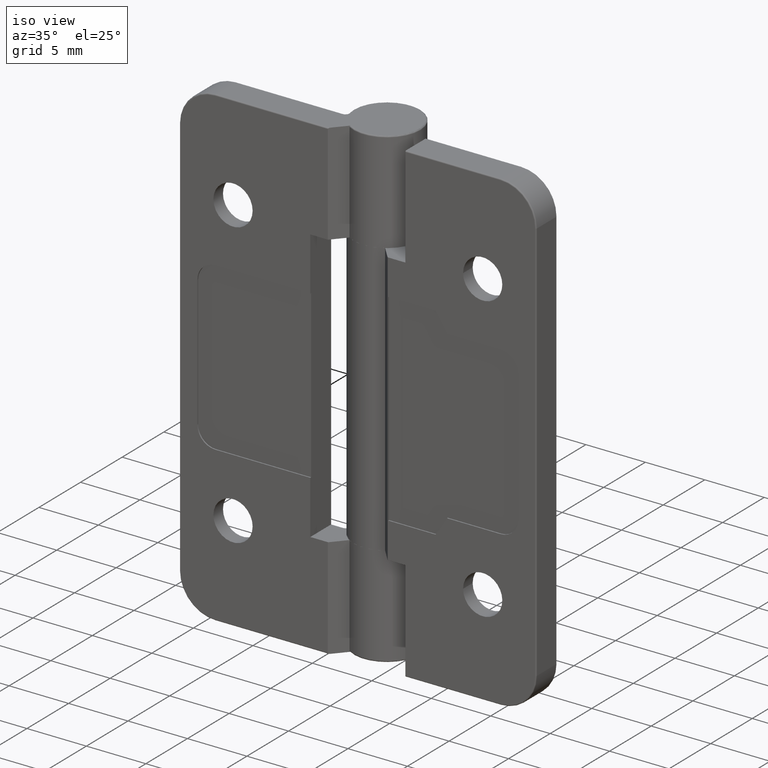
[diagram: clean part render]
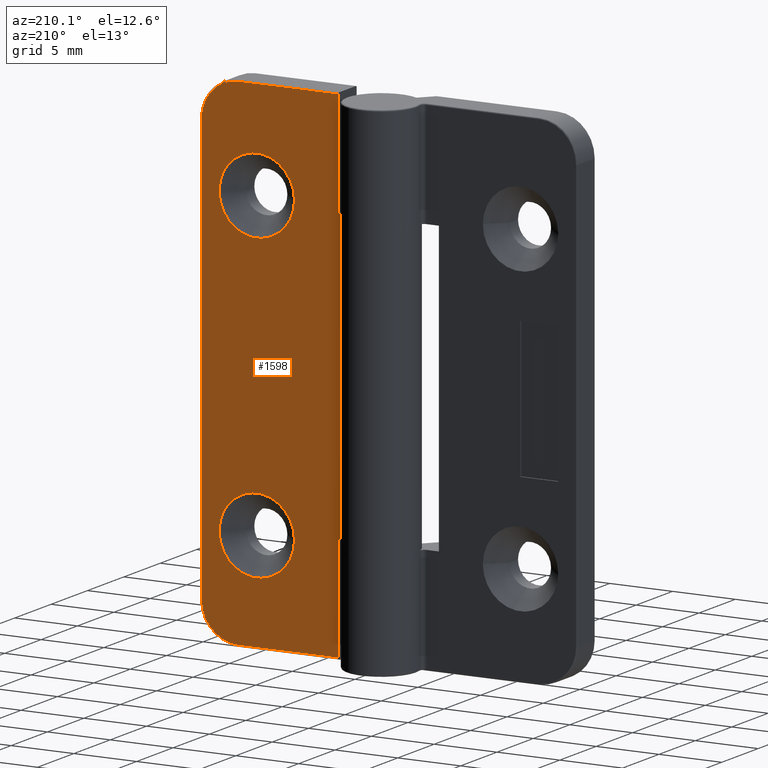
[diagram: tour spotlight — one face highlighted and labeled with its STEP entity id]
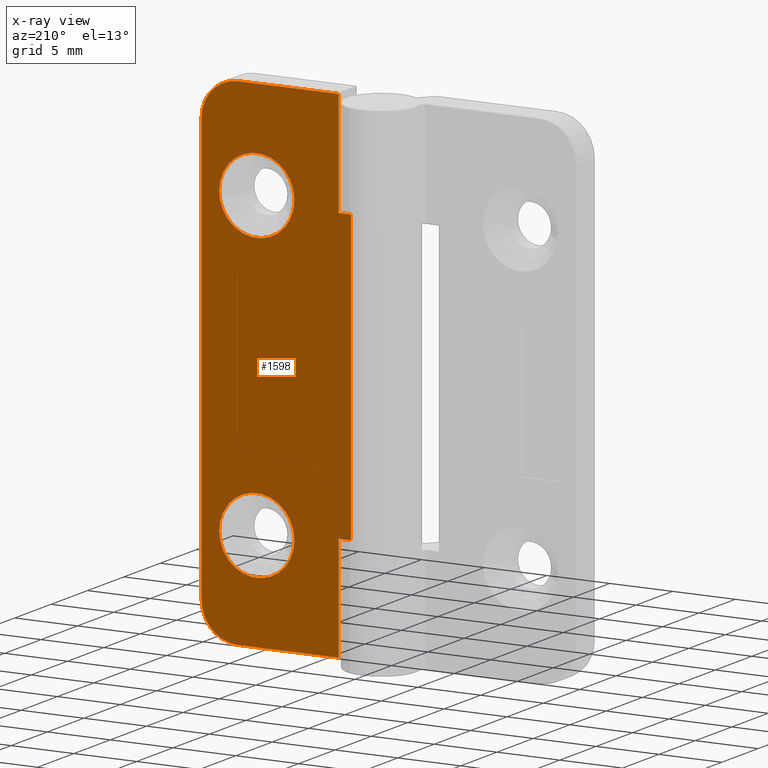
[diagram: x-ray of the same camera — body ghosted, this tour face saturated]
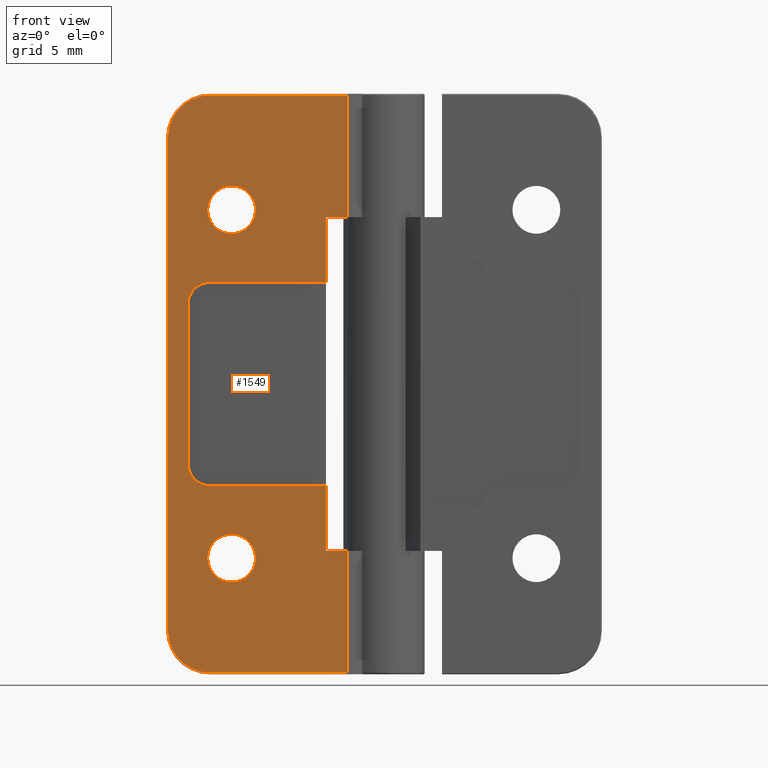
[diagram: tour spotlight — one face highlighted and labeled with its STEP entity id]
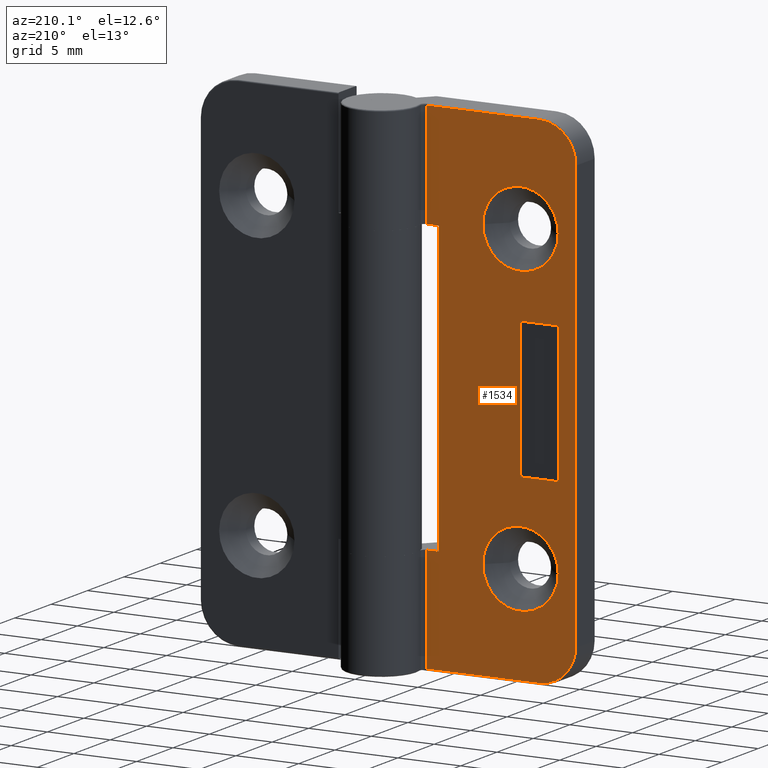
[diagram: tour spotlight — one face highlighted and labeled with its STEP entity id]
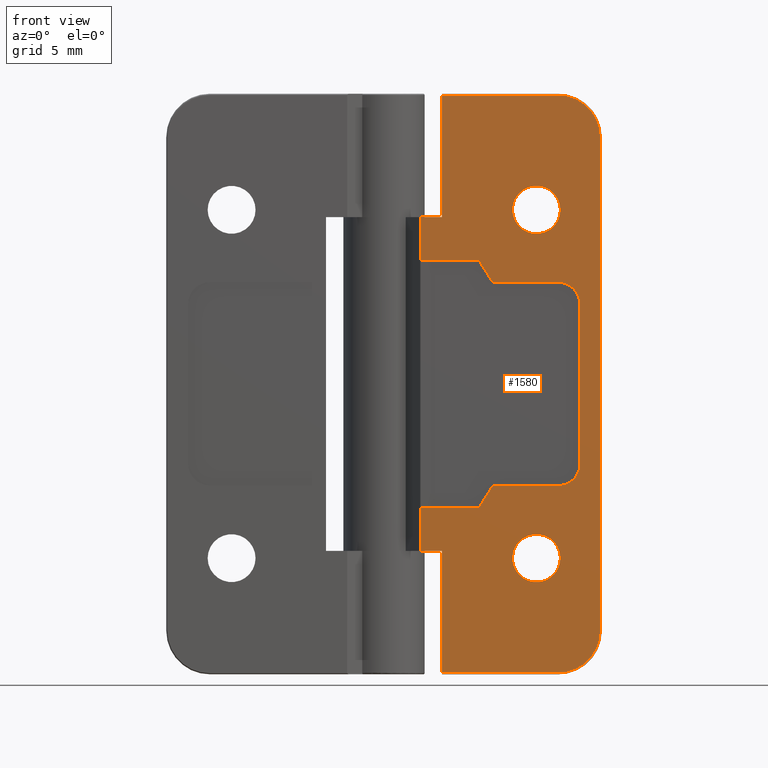
[diagram: tour spotlight — one face highlighted and labeled with its STEP entity id]
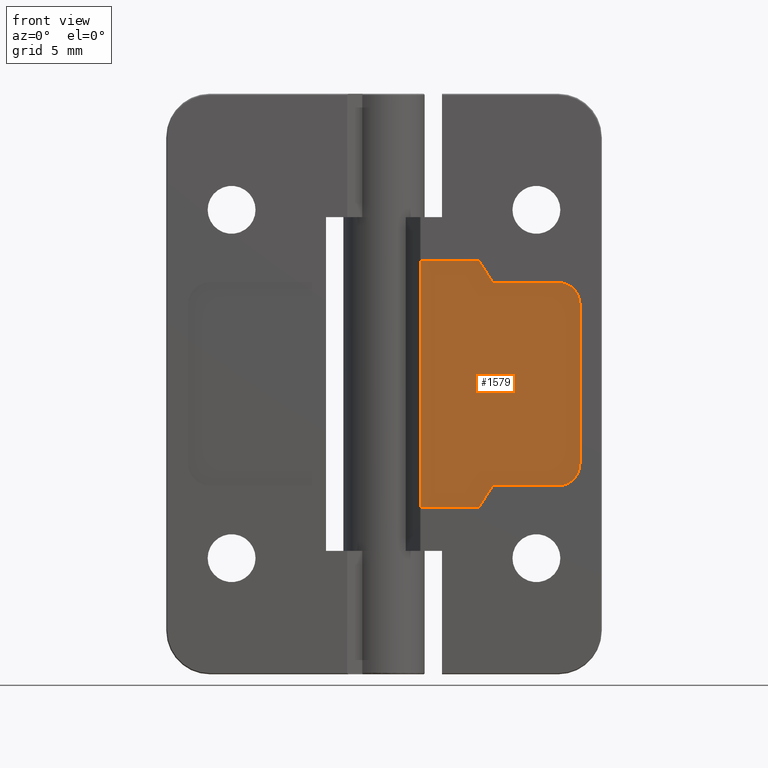
[diagram: tour spotlight — one face highlighted and labeled with its STEP entity id]
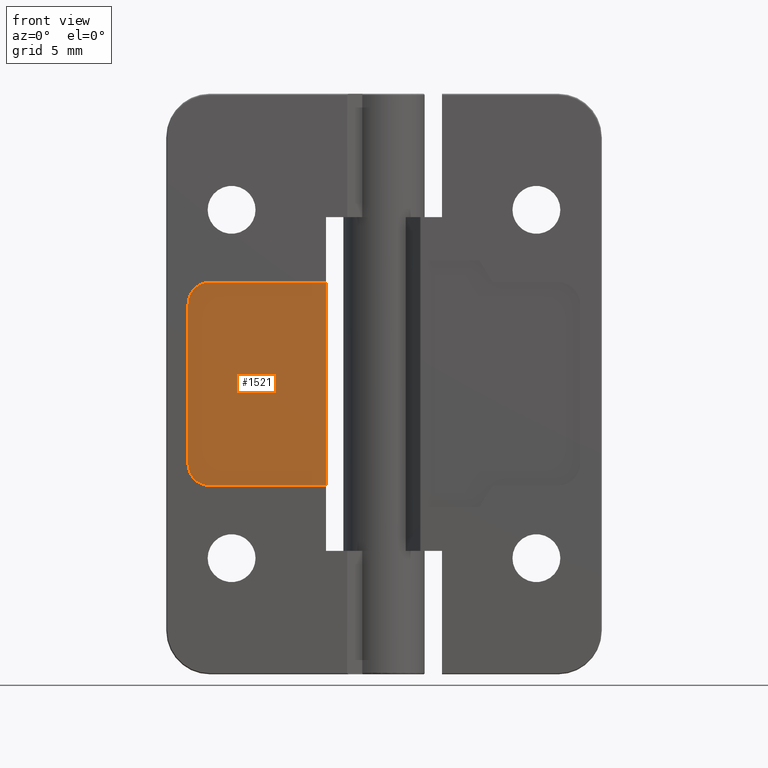
[diagram: tour spotlight — one face highlighted and labeled with its STEP entity id]
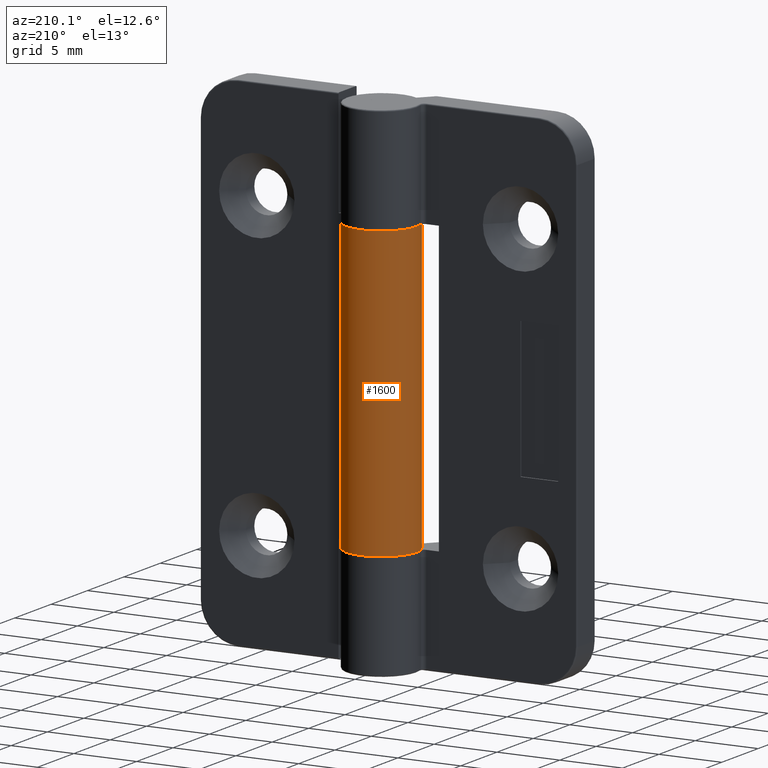
[diagram: tour spotlight — one face highlighted and labeled with its STEP entity id]
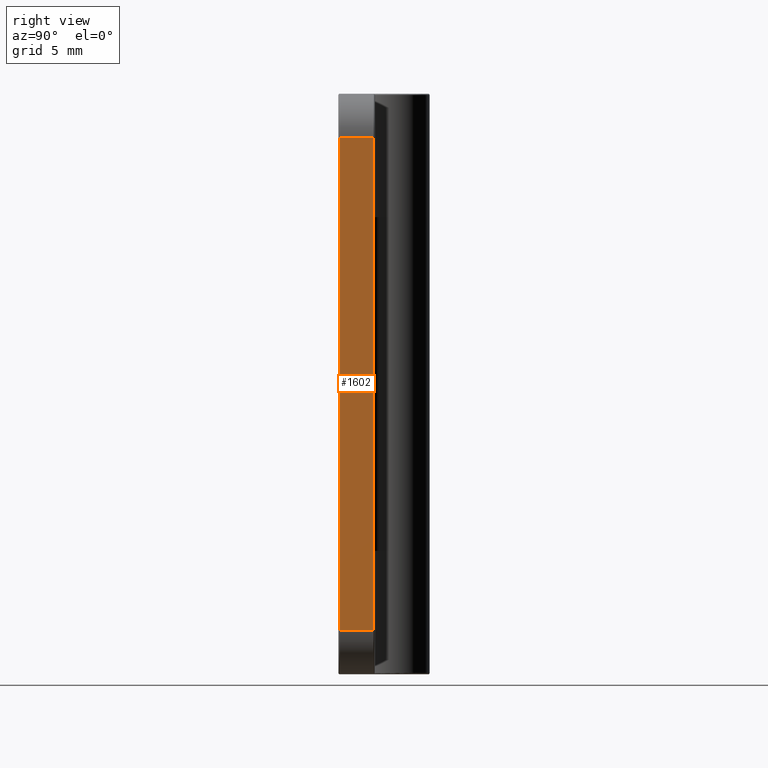
[diagram: tour spotlight — one face highlighted and labeled with its STEP entity id]
A machine part: a face-by-face anatomy tour. The part has 93 B-rep faces; the first image is the clean iso view, then the 8 largest visible faces are spotlighted one at a time (largest first), each with its STEP entity span.

Face 1 — auxiliary view, entity #1598. An x-ray twin of the same camera follows (body ghosted, this face saturated) — the face is partly hidden behind the body. In plain terms, the highlighted planar face has unit normal (0, 1, 0).
Definition (entity closure, byte-faithful):
#76=FACE_BOUND('',#400,.T.);
#77=FACE_BOUND('',#401,.T.);
#199=CIRCLE('',#1776,2.9);
#202=CIRCLE('',#1781,2.9);
#203=CIRCLE('',#1783,3.);
#204=CIRCLE('',#1784,3.);
#287=FACE_OUTER_BOUND('',#399,.T.);
#399=EDGE_LOOP('',(#1430,#1431,#1432,#1433,#1434,#1435,#1436,#1437,#1438,
#1439));
#400=EDGE_LOOP('',(#1440));
#401=EDGE_LOOP('',(#1441));
#521=LINE('',#2673,#647);
#524=LINE('',#2682,#650);
#526=LINE('',#2695,#652);
#529=LINE('',#2708,#655);
#532=LINE('',#2719,#658);
#539=LINE('',#2746,#665);
#542=LINE('',#2761,#668);
#543=LINE('',#2766,#669);
#647=VECTOR('',#2155,8.4);
#650=VECTOR('',#2164,1.00000000000001);
#652=VECTOR('',#2176,1.);
#655=VECTOR('',#2189,8.4);
#658=VECTOR('',#2200,7.99999999999999);
#665=VECTOR('',#2237,8.);
#668=VECTOR('',#2254,34.);
#669=VECTOR('',#2263,23.);
#784=VERTEX_POINT('',#2671);
#785=VERTEX_POINT('',#2672);
#788=VERTEX_POINT('',#2681);
#793=VERTEX_POINT('',#2693);
#794=VERTEX_POINT('',#2694);
#799=VERTEX_POINT('',#2707);
#803=VERTEX_POINT('',#2717);
#808=VERTEX_POINT('',#2745);
#810=VERTEX_POINT('',#2751);
#812=VERTEX_POINT('',#2757);
#814=VERTEX_POINT('',#2767);
#815=VERTEX_POINT('',#2769);
#981=EDGE_CURVE('',#784,#785,#521,.T.);
#986=EDGE_CURVE('',#788,#784,#524,.T.);
#992=EDGE_CURVE('',#793,#794,#526,.T.);
#999=EDGE_CURVE('',#799,#793,#529,.T.);
#1005=EDGE_CURVE('',#803,#785,#532,.T.);
#1018=EDGE_CURVE('',#799,#808,#539,.T.);
#1023=EDGE_CURVE('',#808,#810,#199,.T.);
#1026=EDGE_CURVE('',#810,#812,#542,.T.);
#1028=EDGE_CURVE('',#812,#803,#202,.T.);
#1029=EDGE_CURVE('',#788,#794,#543,.T.);
#1030=EDGE_CURVE('',#814,#814,#203,.T.);
#1031=EDGE_CURVE('',#815,#815,#204,.T.);
#1430=ORIENTED_EDGE('',*,*,#981,.T.);
#1431=ORIENTED_EDGE('',*,*,#1005,.F.);
#1432=ORIENTED_EDGE('',*,*,#1028,.F.);
#1433=ORIENTED_EDGE('',*,*,#1026,.F.);
#1434=ORIENTED_EDGE('',*,*,#1023,.F.);
#1435=ORIENTED_EDGE('',*,*,#1018,.F.);
#1436=ORIENTED_EDGE('',*,*,#999,.T.);
#1437=ORIENTED_EDGE('',*,*,#992,.T.);
#1438=ORIENTED_EDGE('',*,*,#1029,.F.);
#1439=ORIENTED_EDGE('',*,*,#986,.T.);
#1440=ORIENTED_EDGE('',*,*,#1030,.T.);
#1441=ORIENTED_EDGE('',*,*,#1031,.T.);
#1515=PLANE('',#1782);
#1598=ADVANCED_FACE('',(#287,#76,#77),#1515,.T.);
#1776=AXIS2_PLACEMENT_3D('',#2755,#2247,#2248);
#1781=AXIS2_PLACEMENT_3D('',#2764,#2259,#2260);
#1782=AXIS2_PLACEMENT_3D('',#2765,#2261,#2262);
#1783=AXIS2_PLACEMENT_3D('',#2768,#2264,#2265);
#1784=AXIS2_PLACEMENT_3D('',#2770,#2266,#2267);
#2155=DIRECTION('',(-1.26441927019085E-16,0.,-1.));
#2164=DIRECTION('',(-1.,0.,0.));
#2176=DIRECTION('',(1.,0.,0.));
#2189=DIRECTION('',(-1.26441927019085E-16,0.,-1.));
#2200=DIRECTION('',(1.,0.,0.));
#2237=DIRECTION('',(-1.,0.,0.));
#2247=DIRECTION('center_axis',(0.,-1.,0.));
#2248=DIRECTION('ref_axis',(-0.707106781186547,0.,0.707106781186547));
#2254=DIRECTION('',(0.,0.,-1.));
#2259=DIRECTION('center_axis',(0.,-1.,0.));
#2260=DIRECTION('ref_axis',(-0.707106781186547,0.,-0.707106781186547));
#2261=DIRECTION('center_axis',(0.,1.,0.));
#2262=DIRECTION('ref_axis',(-1.,0.,0.));
#2263=DIRECTION('',(0.,0.,1.));
#2264=DIRECTION('center_axis',(0.,-1.,0.));
#2265=DIRECTION('ref_axis',(1.,0.,0.));
#2266=DIRECTION('center_axis',(0.,-1.,0.));
#2267=DIRECTION('ref_axis',(1.,0.,0.));
#2671=CARTESIAN_POINT('',(-4.,2.5,-11.5));
#2672=CARTESIAN_POINT('',(-4.,2.5,-19.9));
#2673=CARTESIAN_POINT('',(-4.,2.5,-14.530497504262));
#2681=CARTESIAN_POINT('',(-3.,2.5,-11.5));
#2682=CARTESIAN_POINT('',(-3.5,2.5,-11.5));
#2693=CARTESIAN_POINT('',(-4.,2.5,11.5));
#2694=CARTESIAN_POINT('',(-3.,2.5,11.5));
#2695=CARTESIAN_POINT('',(1.24195940437137,2.5,11.5));
#2707=CARTESIAN_POINT('',(-4.,2.5,19.9));
#2708=CARTESIAN_POINT('',(-4.,2.5,5.75));
#2717=CARTESIAN_POINT('',(-12.,2.5,-19.9));
#2719=CARTESIAN_POINT('',(-5.80214173443126,2.5,-19.9));
#2745=CARTESIAN_POINT('',(-12.,2.5,19.9));
#2746=CARTESIAN_POINT('',(-5.80214173443126,2.5,19.9));
#2751=CARTESIAN_POINT('',(-14.9,2.5,17.));
#2755=CARTESIAN_POINT('Origin',(-12.,2.5,17.));
#2757=CARTESIAN_POINT('',(-14.9,2.5,-17.));
#2761=CARTESIAN_POINT('',(-14.9,2.5,0.));
#2764=CARTESIAN_POINT('Origin',(-12.,2.5,-17.));
#2765=CARTESIAN_POINT('Origin',(-3.,2.5,0.));
#2766=CARTESIAN_POINT('',(-3.,2.5,0.));
#2767=CARTESIAN_POINT('',(-7.5,2.5,-12.));
#2768=CARTESIAN_POINT('Origin',(-10.5,2.5,-12.));
#2769=CARTESIAN_POINT('',(-7.5,2.5,12.));
#2770=CARTESIAN_POINT('Origin',(-10.5,2.5,12.));

Face 2 — front view, entity #1549. In plain terms, the highlighted planar face has unit normal (0, -1, 0).
Definition (entity closure, byte-faithful):
#64=FACE_BOUND('',#339,.T.);
#65=FACE_BOUND('',#340,.T.);
#123=CIRCLE('',#1622,1.5);
#124=CIRCLE('',#1625,1.5);
#144=CIRCLE('',#1667,2.9);
#148=CIRCLE('',#1673,2.9);
#151=CIRCLE('',#1681,1.65);
#152=CIRCLE('',#1682,1.65);
#238=FACE_OUTER_BOUND('',#338,.T.);
#338=EDGE_LOOP('',(#1189,#1190,#1191,#1192,#1193,#1194,#1195,#1196,#1197,
#1198,#1199,#1200,#1201,#1202,#1203,#1204));
#339=EDGE_LOOP('',(#1205));
#340=EDGE_LOOP('',(#1206));
#423=LINE('',#2324,#549);
#430=LINE('',#2344,#556);
#434=LINE('',#2353,#560);
#435=LINE('',#2356,#561);
#439=LINE('',#2363,#565);
#453=LINE('',#2393,#579);
#457=LINE('',#2414,#583);
#468=LINE('',#2466,#594);
#470=LINE('',#2476,#596);
#471=LINE('',#2479,#597);
#474=LINE('',#2494,#600);
#476=LINE('',#2504,#602);
#549=VECTOR('',#1813,8.);
#556=VECTOR('',#1832,11.);
#560=VECTOR('',#1842,8.);
#561=VECTOR('',#1845,4.5);
#565=VECTOR('',#1849,4.50000000000001);
#579=VECTOR('',#1875,1.4548113146741);
#583=VECTOR('',#1895,1.4548113146741);
#594=VECTOR('',#1936,8.4);
#596=VECTOR('',#1948,8.4);
#597=VECTOR('',#1951,9.4548113146741);
#600=VECTOR('',#1968,34.);
#602=VECTOR('',#1980,9.4548113146741);
#674=VERTEX_POINT('',#2320);
#676=VERTEX_POINT('',#2323);
#682=VERTEX_POINT('',#2339);
#683=VERTEX_POINT('',#2343);
#684=VERTEX_POINT('',#2347);
#685=VERTEX_POINT('',#2351);
#686=VERTEX_POINT('',#2355);
#689=VERTEX_POINT('',#2361);
#699=VERTEX_POINT('',#2392);
#708=VERTEX_POINT('',#2412);
#724=VERTEX_POINT('',#2465);
#727=VERTEX_POINT('',#2474);
#728=VERTEX_POINT('',#2478);
#730=VERTEX_POINT('',#2484);
#732=VERTEX_POINT('',#2490);
#734=VERTEX_POINT('',#2496);
#742=VERTEX_POINT('',#2530);
#743=VERTEX_POINT('',#2532);
#821=EDGE_CURVE('',#676,#674,#423,.T.);
#829=EDGE_CURVE('',#682,#676,#123,.T.);
#831=EDGE_CURVE('',#683,#682,#430,.T.);
#833=EDGE_CURVE('',#684,#683,#124,.T.);
#836=EDGE_CURVE('',#685,#684,#434,.T.);
#837=EDGE_CURVE('',#686,#685,#435,.T.);
#841=EDGE_CURVE('',#674,#689,#439,.T.);
#855=EDGE_CURVE('',#699,#686,#453,.T.);
#866=EDGE_CURVE('',#689,#708,#457,.T.);
#887=EDGE_CURVE('',#699,#724,#468,.T.);
#892=EDGE_CURVE('',#727,#708,#470,.T.);
#893=EDGE_CURVE('',#724,#728,#471,.T.);
#898=EDGE_CURVE('',#728,#730,#144,.T.);
#901=EDGE_CURVE('',#730,#732,#474,.T.);
#904=EDGE_CURVE('',#732,#734,#148,.T.);
#906=EDGE_CURVE('',#734,#727,#476,.T.);
#915=EDGE_CURVE('',#742,#742,#151,.T.);
#916=EDGE_CURVE('',#743,#743,#152,.T.);
#1189=ORIENTED_EDGE('',*,*,#821,.T.);
#1190=ORIENTED_EDGE('',*,*,#841,.T.);
#1191=ORIENTED_EDGE('',*,*,#866,.T.);
#1192=ORIENTED_EDGE('',*,*,#892,.F.);
#1193=ORIENTED_EDGE('',*,*,#906,.F.);
#1194=ORIENTED_EDGE('',*,*,#904,.F.);
#1195=ORIENTED_EDGE('',*,*,#901,.F.);
#1196=ORIENTED_EDGE('',*,*,#898,.F.);
#1197=ORIENTED_EDGE('',*,*,#893,.F.);
#1198=ORIENTED_EDGE('',*,*,#887,.F.);
#1199=ORIENTED_EDGE('',*,*,#855,.T.);
#1200=ORIENTED_EDGE('',*,*,#837,.T.);
#1201=ORIENTED_EDGE('',*,*,#836,.T.);
#1202=ORIENTED_EDGE('',*,*,#833,.T.);
#1203=ORIENTED_EDGE('',*,*,#831,.T.);
#1204=ORIENTED_EDGE('',*,*,#829,.T.);
#1205=ORIENTED_EDGE('',*,*,#915,.T.);
#1206=ORIENTED_EDGE('',*,*,#916,.T.);
#1496=PLANE('',#1680);
#1549=ADVANCED_FACE('',(#238,#64,#65),#1496,.T.);
#1622=AXIS2_PLACEMENT_3D('',#2340,#1827,#1828);
#1625=AXIS2_PLACEMENT_3D('',#2348,#1836,#1837);
#1667=AXIS2_PLACEMENT_3D('',#2488,#1961,#1962);
#1673=AXIS2_PLACEMENT_3D('',#2500,#1975,#1976);
#1680=AXIS2_PLACEMENT_3D('',#2529,#1995,#1996);
#1681=AXIS2_PLACEMENT_3D('',#2531,#1997,#1998);
#1682=AXIS2_PLACEMENT_3D('',#2533,#1999,#2000);
#1813=DIRECTION('',(1.,7.83773951454306E-17,1.60817608183928E-16));
#1827=DIRECTION('center_axis',(-7.83773951454306E-17,1.,0.));
#1828=DIRECTION('ref_axis',(0.,0.,1.));
#1832=DIRECTION('',(-2.01858731750028E-16,-1.58211615819275E-32,1.));
#1836=DIRECTION('center_axis',(-7.83773951454306E-17,1.,0.));
#1837=DIRECTION('ref_axis',(-1.,0.,0.));
#1842=DIRECTION('',(-1.,-7.83773951454306E-17,3.21635216367857E-16));
#1845=DIRECTION('',(1.93082265152201E-16,1.51332849914089E-32,1.));
#1849=DIRECTION('',(1.93082265152201E-16,1.51332849914089E-32,1.));
#1875=DIRECTION('',(-1.,-7.83773951454306E-17,0.));
#1895=DIRECTION('',(1.,7.83773951454306E-17,-9.99935296895975E-17));
#1936=DIRECTION('',(0.,0.,-1.));
#1948=DIRECTION('',(0.,0.,-1.));
#1951=DIRECTION('',(-1.,-7.83773951454306E-17,0.));
#1961=DIRECTION('center_axis',(-7.83773951454306E-17,1.,0.));
#1962=DIRECTION('ref_axis',(-0.707106781186547,-5.54211875990716E-17,-0.707106781186547));
#1968=DIRECTION('',(0.,0.,1.));
#1975=DIRECTION('center_axis',(-7.83773951454306E-17,1.,0.));
#1976=DIRECTION('ref_axis',(-0.707106781186547,-5.54211875990716E-17,0.707106781186547));
#1980=DIRECTION('',(1.,7.83773951454306E-17,0.));
#1995=DIRECTION('center_axis',(7.83773951454306E-17,-1.,0.));
#1996=DIRECTION('ref_axis',(1.,7.83773951454306E-17,0.));
#1997=DIRECTION('center_axis',(-7.83773951454306E-17,1.,0.));
#1998=DIRECTION('ref_axis',(1.,0.,0.));
#1999=DIRECTION('center_axis',(-7.83773951454306E-17,1.,0.));
#2000=DIRECTION('ref_axis',(1.,0.,0.));
#2320=CARTESIAN_POINT('',(-4.,-1.17566092718146E-16,7.));
#2323=CARTESIAN_POINT('',(-12.,-7.44585253881591E-16,7.));
#2324=CARTESIAN_POINT('',(-13.5,-8.62151346599737E-16,7.));
#2339=CARTESIAN_POINT('',(-13.5,-8.62151346599737E-16,5.5));
#2340=CARTESIAN_POINT('Origin',(-12.,-9.79717439317883E-16,5.5));
#2343=CARTESIAN_POINT('',(-13.5,-8.62151346599737E-16,-5.50000000000001));
#2344=CARTESIAN_POINT('',(-13.5,-8.62151346599737E-16,-2.75));
#2347=CARTESIAN_POINT('',(-12.,-7.44585253881591E-16,-7.));
#2348=CARTESIAN_POINT('Origin',(-12.,-9.79717439317883E-16,-5.50000000000001));
#2351=CARTESIAN_POINT('',(-4.,-1.17566092718146E-16,-7.));
#2353=CARTESIAN_POINT('',(-6.59638392734093,-3.21063901740591E-16,-7.));
#2355=CARTESIAN_POINT('',(-4.,0.,-11.5));
#2356=CARTESIAN_POINT('',(-4.,-2.77555756156289E-16,-5.75));
#2361=CARTESIAN_POINT('',(-4.,0.,11.5));
#2363=CARTESIAN_POINT('',(-4.,-2.77555756156289E-16,-5.75));
#2392=CARTESIAN_POINT('',(-2.5451886853259,0.,-11.5));
#2393=CARTESIAN_POINT('',(-3.94852567925375,-2.77555756156289E-16,-11.5));
#2412=CARTESIAN_POINT('',(-2.5451886853259,0.,11.5));
#2414=CARTESIAN_POINT('',(-9.5,-5.55111512312578E-16,11.5));
#2465=CARTESIAN_POINT('',(-2.5451886853259,-3.04799293782947E-18,-19.9));
#2466=CARTESIAN_POINT('',(-2.5451886853259,0.,0.));
#2474=CARTESIAN_POINT('',(-2.5451886853259,0.,19.9));
#2476=CARTESIAN_POINT('',(-2.5451886853259,0.,0.));
#2478=CARTESIAN_POINT('',(-12.,-7.4409147537353E-16,-19.9));
#2479=CARTESIAN_POINT('',(-11.8021417344313,-7.28583859910259E-16,-19.9));
#2484=CARTESIAN_POINT('',(-14.9,-9.55878305832008E-16,-17.));
#2488=CARTESIAN_POINT('Origin',(-12.,-7.28583859910259E-16,-17.));
#2490=CARTESIAN_POINT('',(-14.9,-9.71445146547012E-16,17.));
#2494=CARTESIAN_POINT('',(-14.9,-9.71445146547012E-16,0.));
#2496=CARTESIAN_POINT('',(-12.,-7.28583859910259E-16,19.9));
#2500=CARTESIAN_POINT('Origin',(-12.,-7.28583859910259E-16,17.));
#2504=CARTESIAN_POINT('',(-11.8021417344313,-7.28583859910259E-16,19.9));
#2529=CARTESIAN_POINT('Origin',(-15.,-9.79717439317883E-16,0.));
#2530=CARTESIAN_POINT('',(-12.15,-1.11022302462516E-15,-12.));
#2531=CARTESIAN_POINT('Origin',(-10.5,-1.11022302462516E-15,-12.));
#2532=CARTESIAN_POINT('',(-12.15,-1.11022302462516E-15,12.));
#2533=CARTESIAN_POINT('Origin',(-10.5,-1.11022302462516E-15,12.));

Face 3 — auxiliary view, entity #1534. In plain terms, the highlighted planar face has unit normal (0, 1, 0).
Definition (entity closure, byte-faithful):
#59=FACE_BOUND('',#319,.T.);
#60=FACE_BOUND('',#320,.T.);
#61=FACE_BOUND('',#321,.T.);
#133=CIRCLE('',#1644,2.9);
#134=CIRCLE('',#1645,2.9);
#135=CIRCLE('',#1646,3.);
#136=CIRCLE('',#1647,3.);
#223=FACE_OUTER_BOUND('',#318,.T.);
#318=EDGE_LOOP('',(#1110,#1111,#1112,#1113,#1114,#1115,#1116,#1117,#1118,
#1119));
#319=EDGE_LOOP('',(#1120,#1121,#1122,#1123));
#320=EDGE_LOOP('',(#1124));
#321=EDGE_LOOP('',(#1125));
#437=LINE('',#2360,#563);
#440=LINE('',#2367,#566);
#444=LINE('',#2375,#570);
#447=LINE('',#2381,#573);
#450=LINE('',#2386,#576);
#452=LINE('',#2391,#578);
#455=LINE('',#2405,#581);
#458=LINE('',#2419,#584);
#459=LINE('',#2421,#585);
#460=LINE('',#2425,#586);
#461=LINE('',#2429,#587);
#462=LINE('',#2430,#588);
#563=VECTOR('',#1847,23.);
#566=VECTOR('',#1852,11.);
#570=VECTOR('',#1858,3.);
#573=VECTOR('',#1863,11.);
#576=VECTOR('',#1868,3.);
#578=VECTOR('',#1874,1.);
#581=VECTOR('',#1887,0.999999999999999);
#584=VECTOR('',#1900,8.4);
#585=VECTOR('',#1901,9.);
#586=VECTOR('',#1904,34.);
#587=VECTOR('',#1907,9.);
#588=VECTOR('',#1908,8.4);
#687=VERTEX_POINT('',#2357);
#688=VERTEX_POINT('',#2359);
#690=VERTEX_POINT('',#2365);
#691=VERTEX_POINT('',#2366);
#694=VERTEX_POINT('',#2374);
#696=VERTEX_POINT('',#2380);
#698=VERTEX_POINT('',#2390);
#704=VERTEX_POINT('',#2404);
#710=VERTEX_POINT('',#2418);
#711=VERTEX_POINT('',#2420);
#712=VERTEX_POINT('',#2422);
#713=VERTEX_POINT('',#2424);
#714=VERTEX_POINT('',#2426);
#715=VERTEX_POINT('',#2428);
#716=VERTEX_POINT('',#2431);
#717=VERTEX_POINT('',#2433);
#839=EDGE_CURVE('',#688,#687,#437,.T.);
#842=EDGE_CURVE('',#690,#691,#440,.T.);
#846=EDGE_CURVE('',#694,#690,#444,.T.);
#849=EDGE_CURVE('',#696,#694,#447,.T.);
#852=EDGE_CURVE('',#691,#696,#450,.T.);
#854=EDGE_CURVE('',#687,#698,#452,.T.);
#861=EDGE_CURVE('',#704,#688,#455,.T.);
#868=EDGE_CURVE('',#710,#698,#458,.T.);
#869=EDGE_CURVE('',#711,#710,#459,.T.);
#870=EDGE_CURVE('',#712,#711,#133,.T.);
#871=EDGE_CURVE('',#713,#712,#460,.T.);
#872=EDGE_CURVE('',#714,#713,#134,.T.);
#873=EDGE_CURVE('',#715,#714,#461,.T.);
#874=EDGE_CURVE('',#704,#715,#462,.T.);
#875=EDGE_CURVE('',#716,#716,#135,.T.);
#876=EDGE_CURVE('',#717,#717,#136,.T.);
#1110=ORIENTED_EDGE('',*,*,#861,.T.);
#1111=ORIENTED_EDGE('',*,*,#839,.T.);
#1112=ORIENTED_EDGE('',*,*,#854,.T.);
#1113=ORIENTED_EDGE('',*,*,#868,.F.);
#1114=ORIENTED_EDGE('',*,*,#869,.F.);
#1115=ORIENTED_EDGE('',*,*,#870,.F.);
#1116=ORIENTED_EDGE('',*,*,#871,.F.);
#1117=ORIENTED_EDGE('',*,*,#872,.F.);
#1118=ORIENTED_EDGE('',*,*,#873,.F.);
#1119=ORIENTED_EDGE('',*,*,#874,.F.);
#1120=ORIENTED_EDGE('',*,*,#842,.T.);
#1121=ORIENTED_EDGE('',*,*,#852,.T.);
#1122=ORIENTED_EDGE('',*,*,#849,.T.);
#1123=ORIENTED_EDGE('',*,*,#846,.T.);
#1124=ORIENTED_EDGE('',*,*,#875,.T.);
#1125=ORIENTED_EDGE('',*,*,#876,.T.);
#1492=PLANE('',#1643);
#1534=ADVANCED_FACE('',(#223,#59,#60,#61),#1492,.T.);
#1643=AXIS2_PLACEMENT_3D('',#2417,#1898,#1899);
#1644=AXIS2_PLACEMENT_3D('',#2423,#1902,#1903);
#1645=AXIS2_PLACEMENT_3D('',#2427,#1905,#1906);
#1646=AXIS2_PLACEMENT_3D('',#2432,#1909,#1910);
#1647=AXIS2_PLACEMENT_3D('',#2434,#1911,#1912);
#1847=DIRECTION('',(-1.93082265152201E-16,0.,-1.));
#1852=DIRECTION('',(-1.76626390281275E-16,0.,-1.));
#1858=DIRECTION('',(-1.,0.,0.));
#1863=DIRECTION('',(5.04646829375071E-17,0.,1.));
#1868=DIRECTION('',(1.,0.,0.));
#1874=DIRECTION('',(1.,0.,0.));
#1887=DIRECTION('',(-1.,0.,9.99935296895975E-17));
#1898=DIRECTION('center_axis',(0.,1.,0.));
#1899=DIRECTION('ref_axis',(-1.,0.,0.));
#1900=DIRECTION('',(0.,0.,1.));
#1901=DIRECTION('',(1.,0.,0.));
#1902=DIRECTION('center_axis',(0.,-1.,0.));
#1903=DIRECTION('ref_axis',(-0.707106781186547,0.,-0.707106781186547));
#1904=DIRECTION('',(0.,0.,-1.));
#1905=DIRECTION('center_axis',(0.,-1.,0.));
#1906=DIRECTION('ref_axis',(-0.707106781186547,0.,0.707106781186547));
#1907=DIRECTION('',(-1.,0.,0.));
#1908=DIRECTION('',(0.,0.,1.));
#1909=DIRECTION('center_axis',(0.,-1.,0.));
#1910=DIRECTION('ref_axis',(1.,0.,0.));
#1911=DIRECTION('center_axis',(0.,-1.,0.));
#1912=DIRECTION('ref_axis',(1.,0.,0.));
#2357=CARTESIAN_POINT('',(-4.,2.5,-11.5));
#2359=CARTESIAN_POINT('',(-4.,2.5,11.5));
#2360=CARTESIAN_POINT('',(-4.,2.5,-5.75));
#2365=CARTESIAN_POINT('',(-13.5,2.5,5.5));
#2366=CARTESIAN_POINT('',(-13.5,2.5,-5.5));
#2367=CARTESIAN_POINT('',(-13.5,2.5,2.75));
#2374=CARTESIAN_POINT('',(-10.5,2.5,5.5));
#2375=CARTESIAN_POINT('',(-6.75,2.5,5.5));
#2380=CARTESIAN_POINT('',(-10.5,2.5,-5.5));
#2381=CARTESIAN_POINT('',(-10.5,2.5,-2.75));
#2386=CARTESIAN_POINT('',(-8.25,2.5,-5.5));
#2390=CARTESIAN_POINT('',(-3.,2.5,-11.5));
#2391=CARTESIAN_POINT('',(2.05147432074625,2.5,-11.5));
#2404=CARTESIAN_POINT('',(-3.,2.5,11.5));
#2405=CARTESIAN_POINT('',(-3.5,2.5,11.5));
#2417=CARTESIAN_POINT('Origin',(-3.,2.5,0.));
#2418=CARTESIAN_POINT('',(-3.,2.5,-19.9));
#2419=CARTESIAN_POINT('',(-3.,2.5,0.));
#2420=CARTESIAN_POINT('',(-12.,2.5,-19.9));
#2421=CARTESIAN_POINT('',(-5.80214173443126,2.5,-19.9));
#2422=CARTESIAN_POINT('',(-14.9,2.5,-17.));
#2423=CARTESIAN_POINT('Origin',(-12.,2.5,-17.));
#2424=CARTESIAN_POINT('',(-14.9,2.5,17.));
#2425=CARTESIAN_POINT('',(-14.9,2.5,0.));
#2426=CARTESIAN_POINT('',(-12.,2.5,19.9));
#2427=CARTESIAN_POINT('Origin',(-12.,2.5,17.));
#2428=CARTESIAN_POINT('',(-3.,2.5,19.9));
#2429=CARTESIAN_POINT('',(-5.80214173443126,2.5,19.9));
#2430=CARTESIAN_POINT('',(-3.,2.5,0.));
#2431=CARTESIAN_POINT('',(-7.5,2.5,12.));
#2432=CARTESIAN_POINT('Origin',(-10.5,2.5,12.));
#2433=CARTESIAN_POINT('',(-7.5,2.5,-12.));
#2434=CARTESIAN_POINT('Origin',(-10.5,2.5,-12.));

Face 4 — front view, entity #1580. In plain terms, the highlighted planar face has unit normal (-0, -1, 0).
Definition (entity closure, byte-faithful):
#72=FACE_BOUND('',#378,.T.);
#73=FACE_BOUND('',#379,.T.);
#169=CIRCLE('',#1722,1.5);
#171=CIRCLE('',#1726,1.5);
#173=CIRCLE('',#1735,2.9);
#174=CIRCLE('',#1736,2.9);
#175=CIRCLE('',#1737,1.65);
#176=CIRCLE('',#1738,1.65);
#269=FACE_OUTER_BOUND('',#377,.T.);
#377=EDGE_LOOP('',(#1326,#1327,#1328,#1329,#1330,#1331,#1332,#1333,#1334,
#1335,#1336,#1337,#1338,#1339,#1340,#1341,#1342,#1343,#1344,#1345));
#378=EDGE_LOOP('',(#1346));
#379=EDGE_LOOP('',(#1347));
#486=LINE('',#2586,#612);
#490=LINE('',#2594,#616);
#494=LINE('',#2606,#620);
#498=LINE('',#2618,#624);
#501=LINE('',#2624,#627);
#504=LINE('',#2630,#630);
#510=LINE('',#2641,#636);
#512=LINE('',#2646,#638);
#513=LINE('',#2648,#639);
#514=LINE('',#2650,#640);
#515=LINE('',#2652,#641);
#516=LINE('',#2656,#642);
#517=LINE('',#2660,#643);
#518=LINE('',#2662,#644);
#519=LINE('',#2664,#645);
#520=LINE('',#2665,#646);
#612=VECTOR('',#2080,1.77810704026211);
#616=VECTOR('',#2086,4.5);
#620=VECTOR('',#2098,11.);
#624=VECTOR('',#2110,4.5);
#627=VECTOR('',#2115,1.77810704026211);
#630=VECTOR('',#2120,4.);
#636=VECTOR('',#2130,4.);
#638=VECTOR('',#2136,3.);
#639=VECTOR('',#2137,1.4548113146741);
#640=VECTOR('',#2138,8.4);
#641=VECTOR('',#2139,8.);
#642=VECTOR('',#2142,34.);
#643=VECTOR('',#2145,7.99999999999999);
#644=VECTOR('',#2146,8.4);
#645=VECTOR('',#2147,1.4548113146741);
#646=VECTOR('',#2148,3.);
#752=VERTEX_POINT('',#2584);
#753=VERTEX_POINT('',#2585);
#756=VERTEX_POINT('',#2593);
#758=VERTEX_POINT('',#2599);
#760=VERTEX_POINT('',#2605);
#762=VERTEX_POINT('',#2611);
#764=VERTEX_POINT('',#2617);
#766=VERTEX_POINT('',#2623);
#768=VERTEX_POINT('',#2629);
#770=VERTEX_POINT('',#2635);
#772=VERTEX_POINT('',#2645);
#773=VERTEX_POINT('',#2647);
#774=VERTEX_POINT('',#2649);
#775=VERTEX_POINT('',#2651);
#776=VERTEX_POINT('',#2653);
#777=VERTEX_POINT('',#2655);
#778=VERTEX_POINT('',#2657);
#779=VERTEX_POINT('',#2659);
#780=VERTEX_POINT('',#2661);
#781=VERTEX_POINT('',#2663);
#782=VERTEX_POINT('',#2666);
#783=VERTEX_POINT('',#2668);
#938=EDGE_CURVE('',#752,#753,#486,.T.);
#942=EDGE_CURVE('',#756,#752,#490,.T.);
#945=EDGE_CURVE('',#758,#756,#169,.T.);
#948=EDGE_CURVE('',#760,#758,#494,.T.);
#951=EDGE_CURVE('',#762,#760,#171,.T.);
#954=EDGE_CURVE('',#764,#762,#498,.T.);
#957=EDGE_CURVE('',#766,#764,#501,.T.);
#960=EDGE_CURVE('',#768,#766,#504,.T.);
#966=EDGE_CURVE('',#753,#770,#510,.T.);
#968=EDGE_CURVE('',#772,#770,#512,.T.);
#969=EDGE_CURVE('',#772,#773,#513,.T.);
#970=EDGE_CURVE('',#773,#774,#514,.T.);
#971=EDGE_CURVE('',#775,#774,#515,.T.);
#972=EDGE_CURVE('',#776,#775,#173,.T.);
#973=EDGE_CURVE('',#777,#776,#516,.T.);
#974=EDGE_CURVE('',#778,#777,#174,.T.);
#975=EDGE_CURVE('',#779,#778,#517,.T.);
#976=EDGE_CURVE('',#779,#780,#518,.T.);
#977=EDGE_CURVE('',#780,#781,#519,.T.);
#978=EDGE_CURVE('',#768,#781,#520,.T.);
#979=EDGE_CURVE('',#782,#782,#175,.T.);
#980=EDGE_CURVE('',#783,#783,#176,.T.);
#1326=ORIENTED_EDGE('',*,*,#960,.T.);
#1327=ORIENTED_EDGE('',*,*,#957,.T.);
#1328=ORIENTED_EDGE('',*,*,#954,.T.);
#1329=ORIENTED_EDGE('',*,*,#951,.T.);
#1330=ORIENTED_EDGE('',*,*,#948,.T.);
#1331=ORIENTED_EDGE('',*,*,#945,.T.);
#1332=ORIENTED_EDGE('',*,*,#942,.T.);
#1333=ORIENTED_EDGE('',*,*,#938,.T.);
#1334=ORIENTED_EDGE('',*,*,#966,.T.);
#1335=ORIENTED_EDGE('',*,*,#968,.F.);
#1336=ORIENTED_EDGE('',*,*,#969,.T.);
#1337=ORIENTED_EDGE('',*,*,#970,.T.);
#1338=ORIENTED_EDGE('',*,*,#971,.F.);
#1339=ORIENTED_EDGE('',*,*,#972,.F.);
#1340=ORIENTED_EDGE('',*,*,#973,.F.);
#1341=ORIENTED_EDGE('',*,*,#974,.F.);
#1342=ORIENTED_EDGE('',*,*,#975,.F.);
#1343=ORIENTED_EDGE('',*,*,#976,.T.);
#1344=ORIENTED_EDGE('',*,*,#977,.T.);
#1345=ORIENTED_EDGE('',*,*,#978,.F.);
#1346=ORIENTED_EDGE('',*,*,#979,.T.);
#1347=ORIENTED_EDGE('',*,*,#980,.T.);
#1508=PLANE('',#1734);
#1580=ADVANCED_FACE('',(#269,#72,#73),#1508,.T.);
#1722=AXIS2_PLACEMENT_3D('',#2600,#2091,#2092);
#1726=AXIS2_PLACEMENT_3D('',#2612,#2103,#2104);
#1734=AXIS2_PLACEMENT_3D('',#2644,#2134,#2135);
#1735=AXIS2_PLACEMENT_3D('',#2654,#2140,#2141);
#1736=AXIS2_PLACEMENT_3D('',#2658,#2143,#2144);
#1737=AXIS2_PLACEMENT_3D('',#2667,#2149,#2150);
#1738=AXIS2_PLACEMENT_3D('',#2669,#2151,#2152);
#2080=DIRECTION('',(0.536981910005457,4.20872433464457E-17,0.843593757875727));
#2086=DIRECTION('',(1.,7.83773951454306E-17,-9.21557674035261E-16));
#2091=DIRECTION('center_axis',(-7.83773951454306E-17,1.,0.));
#2092=DIRECTION('ref_axis',(3.04767104799062E-16,0.,1.));
#2098=DIRECTION('',(-4.00748952739027E-17,-3.14096590229442E-33,1.));
#2103=DIRECTION('center_axis',(-7.83773951454306E-17,1.,0.));
#2104=DIRECTION('ref_axis',(-1.,0.,-6.53072367426563E-17));
#2110=DIRECTION('',(-1.,-7.83773951454306E-17,-6.53072367426563E-17));
#2115=DIRECTION('',(-0.536981910005457,-4.20872433464458E-17,0.843593757875727));
#2120=DIRECTION('',(-1.,-7.83773951454306E-17,-6.53072367426563E-17));
#2130=DIRECTION('',(1.,7.83773951454306E-17,-1.0449157878825E-15));
#2134=DIRECTION('center_axis',(7.83773951454306E-17,-1.,0.));
#2135=DIRECTION('ref_axis',(1.,7.83773951454306E-17,0.));
#2136=DIRECTION('',(0.,0.,-1.));
#2137=DIRECTION('',(-1.,-7.83773951454306E-17,0.));
#2138=DIRECTION('',(1.26441927019085E-16,9.91018887692453E-33,1.));
#2139=DIRECTION('',(1.,7.83773951454306E-17,0.));
#2140=DIRECTION('center_axis',(-7.83773951454306E-17,1.,0.));
#2141=DIRECTION('ref_axis',(-0.707106781186547,-5.54211875990716E-17,0.707106781186547));
#2142=DIRECTION('',(0.,0.,1.));
#2143=DIRECTION('center_axis',(-7.83773951454306E-17,1.,0.));
#2144=DIRECTION('ref_axis',(-0.707106781186547,-5.54211875990716E-17,-0.707106781186547));
#2145=DIRECTION('',(-1.,-7.83773951454306E-17,0.));
#2146=DIRECTION('',(1.26441927019085E-16,9.91018887692453E-33,1.));
#2147=DIRECTION('',(1.,7.83773951454306E-17,0.));
#2148=DIRECTION('',(0.,0.,-1.));
#2149=DIRECTION('center_axis',(-7.83773951454306E-17,1.,0.));
#2150=DIRECTION('ref_axis',(1.,0.,0.));
#2151=DIRECTION('center_axis',(-7.83773951454306E-17,1.,0.));
#2152=DIRECTION('ref_axis',(1.,0.,0.));
#2584=CARTESIAN_POINT('',(-7.5,-3.91886975727153E-16,7.));
#2585=CARTESIAN_POINT('',(-6.5451886853259,-3.17051352027613E-16,8.5));
#2586=CARTESIAN_POINT('',(-10.1667919495789,-6.00903182129953E-16,2.81049379820792));
#2593=CARTESIAN_POINT('',(-12.,-7.44585253881591E-16,7.));
#2594=CARTESIAN_POINT('',(-13.5,-8.62151346599737E-16,7.00000000000001));
#2599=CARTESIAN_POINT('',(-13.5,-8.62151346599737E-16,5.5));
#2600=CARTESIAN_POINT('Origin',(-12.,-9.79717439317883E-16,5.5));
#2605=CARTESIAN_POINT('',(-13.5,-8.62151346599737E-16,-5.5));
#2606=CARTESIAN_POINT('',(-13.5,-8.62151346599737E-16,-2.75));
#2611=CARTESIAN_POINT('',(-12.,-7.44585253881591E-16,-7.));
#2612=CARTESIAN_POINT('Origin',(-12.,-9.79717439317883E-16,-5.5));
#2617=CARTESIAN_POINT('',(-7.5,-3.91886975727153E-16,-7.));
#2618=CARTESIAN_POINT('',(-11.25,-6.85802207522518E-16,-7.));
#2623=CARTESIAN_POINT('',(-6.5451886853259,-3.17051352027613E-16,-8.5));
#2624=CARTESIAN_POINT('',(-9.68938629224187,-5.63485370280183E-16,-3.56049379820792));
#2629=CARTESIAN_POINT('',(-2.5451886853259,-3.54177144589032E-18,-8.5));
#2630=CARTESIAN_POINT('',(-8.77259434266295,-4.91629605381887E-16,-8.5));
#2635=CARTESIAN_POINT('',(-2.5451886853259,-3.54177144589044E-18,8.5));
#2641=CARTESIAN_POINT('',(-10.7725943426629,-6.48384395672748E-16,8.50000000000001));
#2644=CARTESIAN_POINT('Origin',(-15.,-9.79717439317883E-16,0.));
#2645=CARTESIAN_POINT('',(-2.5451886853259,0.,11.5));
#2646=CARTESIAN_POINT('',(-2.5451886853259,0.,0.));
#2647=CARTESIAN_POINT('',(-4.,0.,11.5));
#2648=CARTESIAN_POINT('',(-4.75804059562863,-2.77555756156289E-16,11.5));
#2649=CARTESIAN_POINT('',(-4.,-1.17072314210085E-16,19.9));
#2650=CARTESIAN_POINT('',(-4.,-2.77555756156289E-16,5.75));
#2651=CARTESIAN_POINT('',(-12.,-7.28583859910259E-16,19.9));
#2652=CARTESIAN_POINT('',(-11.8021417344313,-7.28583859910259E-16,19.9));
#2653=CARTESIAN_POINT('',(-14.9,-9.71445146547012E-16,17.));
#2654=CARTESIAN_POINT('Origin',(-12.,-7.28583859910259E-16,17.));
#2655=CARTESIAN_POINT('',(-14.9,-9.55878305832008E-16,-17.));
#2656=CARTESIAN_POINT('',(-14.9,-9.71445146547012E-16,0.));
#2657=CARTESIAN_POINT('',(-12.,-7.4409147537353E-16,-19.9));
#2658=CARTESIAN_POINT('Origin',(-12.,-7.28583859910259E-16,-17.));
#2659=CARTESIAN_POINT('',(-4.,-1.17072314210085E-16,-19.9));
#2660=CARTESIAN_POINT('',(-11.8021417344313,-7.28583859910259E-16,-19.9));
#2661=CARTESIAN_POINT('',(-4.,0.,-11.5));
#2662=CARTESIAN_POINT('',(-4.,-2.77555756156289E-16,-14.530497504262));
#2663=CARTESIAN_POINT('',(-2.5451886853259,0.,-11.5));
#2664=CARTESIAN_POINT('',(-9.5,-5.55111512312578E-16,-11.5));
#2665=CARTESIAN_POINT('',(-2.5451886853259,0.,0.));
#2666=CARTESIAN_POINT('',(-12.15,-1.11022302462516E-15,-12.));
#2667=CARTESIAN_POINT('Origin',(-10.5,-1.11022302462516E-15,-12.));
#2668=CARTESIAN_POINT('',(-12.15,-1.11022302462516E-15,12.));
#2669=CARTESIAN_POINT('Origin',(-10.5,-1.11022302462516E-15,12.));

Face 5 — front view, entity #1579. In plain terms, the highlighted planar face has unit normal (0, -1, 0).
Definition (entity closure, byte-faithful):
#170=CIRCLE('',#1723,1.5);
#172=CIRCLE('',#1727,1.5);
#268=FACE_OUTER_BOUND('',#376,.T.);
#376=EDGE_LOOP('',(#1316,#1317,#1318,#1319,#1320,#1321,#1322,#1323,#1324,
#1325));
#488=LINE('',#2590,#614);
#492=LINE('',#2597,#618);
#496=LINE('',#2609,#622);
#500=LINE('',#2621,#626);
#503=LINE('',#2627,#629);
#506=LINE('',#2633,#632);
#509=LINE('',#2639,#635);
#511=LINE('',#2642,#637);
#614=VECTOR('',#2082,1.77810704026211);
#618=VECTOR('',#2088,4.5);
#622=VECTOR('',#2100,11.);
#626=VECTOR('',#2112,4.5);
#629=VECTOR('',#2117,1.77810704026211);
#632=VECTOR('',#2122,4.);
#635=VECTOR('',#2127,17.);
#637=VECTOR('',#2131,4.);
#754=VERTEX_POINT('',#2587);
#755=VERTEX_POINT('',#2589);
#757=VERTEX_POINT('',#2595);
#759=VERTEX_POINT('',#2601);
#761=VERTEX_POINT('',#2607);
#763=VERTEX_POINT('',#2613);
#765=VERTEX_POINT('',#2619);
#767=VERTEX_POINT('',#2625);
#769=VERTEX_POINT('',#2631);
#771=VERTEX_POINT('',#2637);
#940=EDGE_CURVE('',#754,#755,#488,.T.);
#944=EDGE_CURVE('',#757,#754,#492,.T.);
#947=EDGE_CURVE('',#759,#757,#170,.T.);
#950=EDGE_CURVE('',#761,#759,#496,.T.);
#953=EDGE_CURVE('',#763,#761,#172,.T.);
#956=EDGE_CURVE('',#765,#763,#500,.T.);
#959=EDGE_CURVE('',#767,#765,#503,.T.);
#962=EDGE_CURVE('',#769,#767,#506,.T.);
#965=EDGE_CURVE('',#771,#769,#509,.T.);
#967=EDGE_CURVE('',#755,#771,#511,.T.);
#1316=ORIENTED_EDGE('',*,*,#967,.F.);
#1317=ORIENTED_EDGE('',*,*,#940,.F.);
#1318=ORIENTED_EDGE('',*,*,#944,.F.);
#1319=ORIENTED_EDGE('',*,*,#947,.F.);
#1320=ORIENTED_EDGE('',*,*,#950,.F.);
#1321=ORIENTED_EDGE('',*,*,#953,.F.);
#1322=ORIENTED_EDGE('',*,*,#956,.F.);
#1323=ORIENTED_EDGE('',*,*,#959,.F.);
#1324=ORIENTED_EDGE('',*,*,#962,.F.);
#1325=ORIENTED_EDGE('',*,*,#965,.F.);
#1507=PLANE('',#1733);
#1579=ADVANCED_FACE('',(#268),#1507,.T.);
#1723=AXIS2_PLACEMENT_3D('',#2603,#2094,#2095);
#1727=AXIS2_PLACEMENT_3D('',#2615,#2106,#2107);
#1733=AXIS2_PLACEMENT_3D('',#2643,#2132,#2133);
#2082=DIRECTION('',(0.536981910005457,4.20872433464457E-17,0.843593757875728));
#2088=DIRECTION('',(1.,7.83773951454306E-17,-9.21557674035261E-16));
#2094=DIRECTION('center_axis',(-7.83773951454306E-17,1.,-1.4896747409179E-35));
#2095=DIRECTION('ref_axis',(3.04767104799062E-16,2.39017485475741E-32,1.));
#2100=DIRECTION('',(-4.00748952739027E-17,-3.12606915488524E-33,1.));
#2106=DIRECTION('center_axis',(-7.83773951454306E-17,1.,-1.48967474091804E-35));
#2107=DIRECTION('ref_axis',(-1.,-7.83773951454306E-17,-6.53072367426563E-17));
#2112=DIRECTION('',(-1.,-7.83773951454306E-17,-6.53072367426563E-17));
#2117=DIRECTION('',(-0.536981910005457,-4.20872433464458E-17,0.843593757875727));
#2122=DIRECTION('',(-1.,-7.83773951454306E-17,-6.53072367426563E-17));
#2127=DIRECTION('',(6.53072367426563E-17,5.10371435262618E-33,-1.));
#2131=DIRECTION('',(1.,7.83773951454306E-17,-1.0449157878825E-15));
#2132=DIRECTION('center_axis',(0.,-1.,0.));
#2133=DIRECTION('ref_axis',(0.,0.,-1.));
#2587=CARTESIAN_POINT('',(-7.5,0.0999999999999996,7.));
#2589=CARTESIAN_POINT('',(-6.5451886853259,0.0999999999999997,8.5));
#2590=CARTESIAN_POINT('',(-6.5451886853259,0.0999999999999997,8.5));
#2595=CARTESIAN_POINT('',(-12.,0.0999999999999993,7.));
#2597=CARTESIAN_POINT('',(-7.5,0.0999999999999996,7.));
#2601=CARTESIAN_POINT('',(-13.5,0.0999999999999992,5.5));
#2603=CARTESIAN_POINT('Origin',(-12.,0.0999999999999993,5.5));
#2607=CARTESIAN_POINT('',(-13.5,0.0999999999999992,-5.5));
#2609=CARTESIAN_POINT('',(-13.5,0.0999999999999991,5.5));
#2613=CARTESIAN_POINT('',(-12.,0.0999999999999993,-7.));
#2615=CARTESIAN_POINT('Origin',(-12.,0.0999999999999993,-5.5));
#2619=CARTESIAN_POINT('',(-7.5,0.0999999999999996,-7.));
#2621=CARTESIAN_POINT('',(-12.,0.0999999999999993,-7.));
#2625=CARTESIAN_POINT('',(-6.5451886853259,0.0999999999999997,-8.5));
#2627=CARTESIAN_POINT('',(-7.5,0.0999999999999996,-7.));
#2631=CARTESIAN_POINT('',(-2.5451886853259,0.1,-8.5));
#2633=CARTESIAN_POINT('',(-6.5451886853259,0.0999999999999997,-8.5));
#2637=CARTESIAN_POINT('',(-2.5451886853259,0.1,8.5));
#2639=CARTESIAN_POINT('',(-2.5451886853259,0.1,-11.5));
#2642=CARTESIAN_POINT('',(-2.5451886853259,0.1,8.5));
#2643=CARTESIAN_POINT('Origin',(-7.42246715650511,0.0999999999999996,-3.41013551621342E-16));

Face 6 — front view, entity #1521. In plain terms, the highlighted planar face has unit normal (0, -1, 0).
Definition (entity closure, byte-faithful):
#121=CIRCLE('',#1619,1.5);
#122=CIRCLE('',#1620,1.5);
#210=FACE_OUTER_BOUND('',#303,.T.);
#303=EDGE_LOOP('',(#1044,#1045,#1046,#1047,#1048,#1049));
#425=LINE('',#2327,#551);
#426=LINE('',#2330,#552);
#427=LINE('',#2334,#553);
#428=LINE('',#2337,#554);
#551=VECTOR('',#1815,8.);
#552=VECTOR('',#1818,14.);
#553=VECTOR('',#1821,11.);
#554=VECTOR('',#1824,8.);
#675=VERTEX_POINT('',#2321);
#677=VERTEX_POINT('',#2325);
#678=VERTEX_POINT('',#2329);
#679=VERTEX_POINT('',#2331);
#680=VERTEX_POINT('',#2333);
#681=VERTEX_POINT('',#2335);
#823=EDGE_CURVE('',#677,#675,#425,.T.);
#824=EDGE_CURVE('',#675,#678,#426,.T.);
#825=EDGE_CURVE('',#679,#677,#121,.T.);
#826=EDGE_CURVE('',#680,#679,#427,.T.);
#827=EDGE_CURVE('',#681,#680,#122,.T.);
#828=EDGE_CURVE('',#678,#681,#428,.T.);
#1044=ORIENTED_EDGE('',*,*,#824,.F.);
#1045=ORIENTED_EDGE('',*,*,#823,.F.);
#1046=ORIENTED_EDGE('',*,*,#825,.F.);
#1047=ORIENTED_EDGE('',*,*,#826,.F.);
#1048=ORIENTED_EDGE('',*,*,#827,.F.);
#1049=ORIENTED_EDGE('',*,*,#828,.F.);
#1481=PLANE('',#1618);
#1521=ADVANCED_FACE('',(#210),#1481,.T.);
#1618=AXIS2_PLACEMENT_3D('',#2328,#1816,#1817);
#1619=AXIS2_PLACEMENT_3D('',#2332,#1819,#1820);
#1620=AXIS2_PLACEMENT_3D('',#2336,#1822,#1823);
#1815=DIRECTION('',(1.,7.83773951454306E-17,1.60817608183928E-16));
#1816=DIRECTION('center_axis',(1.48029736616688E-16,-1.,2.6826926916598E-32));
#1817=DIRECTION('ref_axis',(0.,0.,-1.));
#1818=DIRECTION('',(-1.93082265152201E-16,-5.54088437724317E-32,-1.));
#1819=DIRECTION('center_axis',(-7.83773951454306E-17,1.,0.));
#1820=DIRECTION('ref_axis',(0.,0.,1.));
#1821=DIRECTION('',(-2.01858731750028E-16,-1.58211615819275E-32,1.));
#1822=DIRECTION('center_axis',(-7.83773951454306E-17,1.,0.));
#1823=DIRECTION('ref_axis',(-1.,-7.83773951454306E-17,0.));
#1824=DIRECTION('',(-1.,-7.83773951454306E-17,3.21635216367857E-16));
#2321=CARTESIAN_POINT('',(-4.,0.0999999999999999,7.));
#2325=CARTESIAN_POINT('',(-12.,0.0999999999999993,7.));
#2327=CARTESIAN_POINT('',(1.80723214531814,0.1,7.));
#2328=CARTESIAN_POINT('Origin',(-5.51604677337367,0.0999999999999998,-2.37274647533608E-15));
#2329=CARTESIAN_POINT('',(-4.,0.0999999999999999,-7.));
#2330=CARTESIAN_POINT('',(-4.,0.0999999999999999,-5.75));
#2331=CARTESIAN_POINT('',(-13.5,0.0999999999999991,5.5));
#2332=CARTESIAN_POINT('Origin',(-12.,0.0999999999999993,5.5));
#2333=CARTESIAN_POINT('',(-13.5,0.0999999999999991,-5.50000000000001));
#2334=CARTESIAN_POINT('',(-13.5,0.0999999999999991,5.5));
#2335=CARTESIAN_POINT('',(-12.,0.0999999999999993,-7.));
#2336=CARTESIAN_POINT('Origin',(-12.,0.0999999999999993,-5.50000000000001));
#2337=CARTESIAN_POINT('',(-12.,0.0999999999999993,-7.));

Face 7 — auxiliary view, entity #1600. In plain terms, the highlighted cylindrical surface (partial cylindrical patch) has radius 2.8 mm, axis along (0, 0, -1).
Definition (entity closure, byte-faithful):
#114=CYLINDRICAL_SURFACE('',#1786,2.8);
#180=CIRCLE('',#1744,2.8);
#184=CIRCLE('',#1749,2.8);
#289=FACE_OUTER_BOUND('',#403,.T.);
#403=EDGE_LOOP('',(#1446,#1447,#1448,#1449));
#538=LINE('',#2743,#664);
#544=LINE('',#2772,#670);
#664=VECTOR('',#2234,23.);
#670=VECTOR('',#2270,23.);
#789=VERTEX_POINT('',#2683);
#790=VERTEX_POINT('',#2685);
#796=VERTEX_POINT('',#2699);
#797=VERTEX_POINT('',#2701);
#988=EDGE_CURVE('',#790,#789,#180,.T.);
#996=EDGE_CURVE('',#797,#796,#184,.T.);
#1017=EDGE_CURVE('',#790,#796,#538,.T.);
#1032=EDGE_CURVE('',#789,#797,#544,.T.);
#1446=ORIENTED_EDGE('',*,*,#988,.T.);
#1447=ORIENTED_EDGE('',*,*,#1032,.T.);
#1448=ORIENTED_EDGE('',*,*,#996,.T.);
#1449=ORIENTED_EDGE('',*,*,#1017,.F.);
#1600=ADVANCED_FACE('',(#289),#114,.T.);
#1744=AXIS2_PLACEMENT_3D('',#2686,#2167,#2168);
#1749=AXIS2_PLACEMENT_3D('',#2702,#2181,#2182);
#1786=AXIS2_PLACEMENT_3D('',#2773,#2271,#2272);
#2167=DIRECTION('center_axis',(0.,0.,1.));
#2168=DIRECTION('ref_axis',(1.,0.,0.));
#2181=DIRECTION('center_axis',(0.,0.,-1.));
#2182=DIRECTION('ref_axis',(1.,0.,0.));
#2234=DIRECTION('',(0.,0.,1.));
#2270=DIRECTION('',(0.,0.,1.));
#2271=DIRECTION('center_axis',(0.,0.,1.));
#2272=DIRECTION('ref_axis',(1.,0.,0.));
#2683=CARTESIAN_POINT('',(-2.72354948805461,2.85017064846416,-11.5));
#2685=CARTESIAN_POINT('',(-1.5,1.13568191649262,-11.5));
#2686=CARTESIAN_POINT('Origin',(0.,3.5,-11.5));
#2699=CARTESIAN_POINT('',(-1.5,1.13568191649262,11.5));
#2701=CARTESIAN_POINT('',(-2.72354948805461,2.85017064846416,11.5));
#2702=CARTESIAN_POINT('Origin',(0.,3.5,11.5));
#2743=CARTESIAN_POINT('',(-1.5,1.13568191649262,0.));
#2772=CARTESIAN_POINT('',(-2.72354948805461,2.85017064846416,0.));
#2773=CARTESIAN_POINT('Origin',(0.,3.5,0.));

Face 8 — right view, entity #1602. In plain terms, the highlighted planar face has unit normal (1, 0, 0).
Definition (entity closure, byte-faithful):
#291=FACE_OUTER_BOUND('',#405,.T.);
#405=EDGE_LOOP('',(#1454,#1455,#1456,#1457));
#536=LINE('',#2735,#662);
#541=LINE('',#2760,#667);
#545=LINE('',#2775,#671);
#546=LINE('',#2777,#672);
#662=VECTOR('',#2222,34.);
#667=VECTOR('',#2253,34.);
#671=VECTOR('',#2275,2.3);
#672=VECTOR('',#2278,2.3);
#805=VERTEX_POINT('',#2729);
#806=VERTEX_POINT('',#2733);
#811=VERTEX_POINT('',#2752);
#813=VERTEX_POINT('',#2758);
#1013=EDGE_CURVE('',#806,#805,#536,.T.);
#1025=EDGE_CURVE('',#813,#811,#541,.T.);
#1033=EDGE_CURVE('',#805,#813,#545,.T.);
#1034=EDGE_CURVE('',#811,#806,#546,.T.);
#1454=ORIENTED_EDGE('',*,*,#1013,.F.);
#1455=ORIENTED_EDGE('',*,*,#1034,.F.);
#1456=ORIENTED_EDGE('',*,*,#1025,.F.);
#1457=ORIENTED_EDGE('',*,*,#1033,.F.);
#1516=PLANE('',#1788);
#1602=ADVANCED_FACE('',(#291),#1516,.T.);
#1788=AXIS2_PLACEMENT_3D('',#2776,#2276,#2277);
#2222=DIRECTION('',(0.,0.,-1.));
#2253=DIRECTION('',(0.,0.,1.));
#2275=DIRECTION('',(0.,1.,0.));
#2276=DIRECTION('center_axis',(-1.,0.,0.));
#2277=DIRECTION('ref_axis',(0.,-1.,0.));
#2278=DIRECTION('',(0.,-1.,0.));
#2729=CARTESIAN_POINT('',(-15.,0.0999999999999987,-17.));
#2733=CARTESIAN_POINT('',(-15.,0.099999999999999,17.));
#2735=CARTESIAN_POINT('',(-15.,0.099999999999999,0.));
#2752=CARTESIAN_POINT('',(-15.,2.4,17.));
#2758=CARTESIAN_POINT('',(-15.,2.4,-17.));
#2760=CARTESIAN_POINT('',(-15.,2.4,0.));
#2775=CARTESIAN_POINT('',(-15.,1.87415960455924,-17.));
#2776=CARTESIAN_POINT('Origin',(-15.,2.5,0.));
#2777=CARTESIAN_POINT('',(-15.,1.87415960455924,17.));